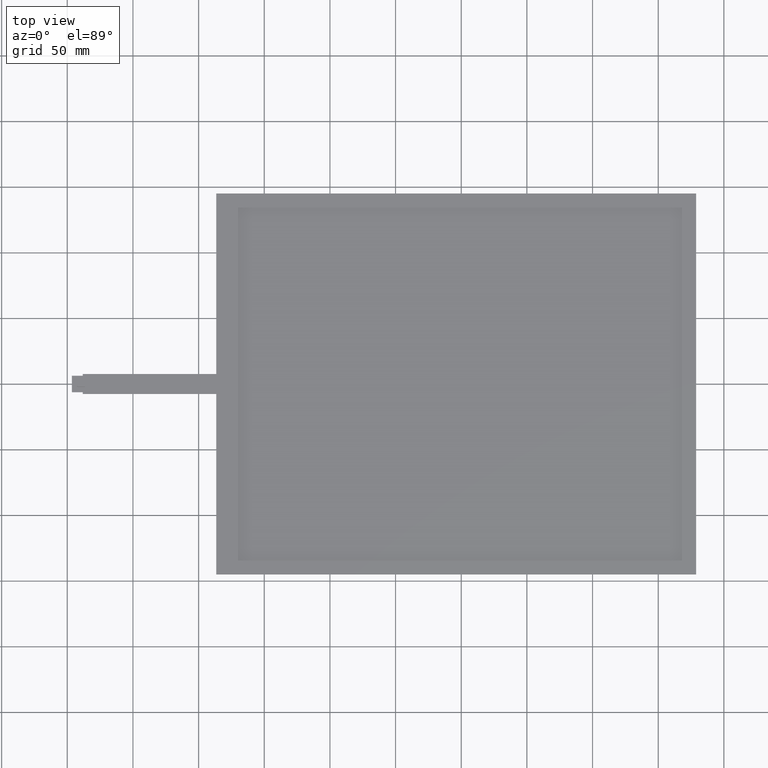
[diagram: clean part render]
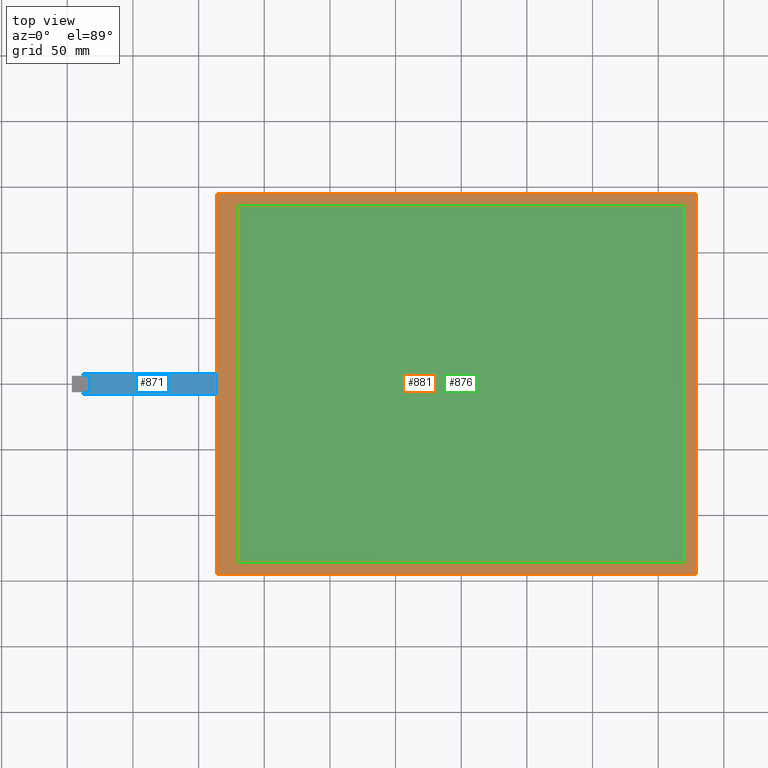
[diagram: same view with three faces highlighted in distinct colors, each labeled with its STEP entity id]
A machine part, top view with three faces highlighted in distinct colors.
Their STEP definitions:

[orange] entity #881 — the highlighted planar face has unit normal (0, 0, 1).
#61=FACE_BOUND('',#149,.T.);
#103=FACE_OUTER_BOUND('',#148,.T.);
#148=EDGE_LOOP('',(#785,#786,#787,#788));
#149=EDGE_LOOP('',(#789,#790,#791,#792));
#241=LINE('',#1334,#355);
#245=LINE('',#1342,#359);
#248=LINE('',#1348,#362);
#251=LINE('',#1353,#365);
#253=LINE('',#1359,#367);
#257=LINE('',#1367,#371);
#260=LINE('',#1373,#374);
#263=LINE('',#1378,#377);
#355=VECTOR('',#1104,10.);
#359=VECTOR('',#1110,10.);
#362=VECTOR('',#1115,10.);
#365=VECTOR('',#1120,10.);
#367=VECTOR('',#1126,10.);
#371=VECTOR('',#1132,10.);
#374=VECTOR('',#1137,10.);
#377=VECTOR('',#1142,10.);
#439=VERTEX_POINT('',#1332);
#440=VERTEX_POINT('',#1333);
#443=VERTEX_POINT('',#1341);
#445=VERTEX_POINT('',#1347);
#447=VERTEX_POINT('',#1357);
#448=VERTEX_POINT('',#1358);
#451=VERTEX_POINT('',#1366);
#453=VERTEX_POINT('',#1372);
#545=EDGE_CURVE('',#439,#440,#241,.T.);
#549=EDGE_CURVE('',#443,#439,#245,.T.);
#552=EDGE_CURVE('',#445,#443,#248,.T.);
#555=EDGE_CURVE('',#440,#445,#251,.T.);
#557=EDGE_CURVE('',#447,#448,#253,.T.);
#561=EDGE_CURVE('',#448,#451,#257,.T.);
#564=EDGE_CURVE('',#451,#453,#260,.T.);
#567=EDGE_CURVE('',#453,#447,#263,.T.);
#785=ORIENTED_EDGE('',*,*,#567,.T.);
#786=ORIENTED_EDGE('',*,*,#557,.T.);
#787=ORIENTED_EDGE('',*,*,#561,.T.);
#788=ORIENTED_EDGE('',*,*,#564,.T.);
#789=ORIENTED_EDGE('',*,*,#545,.T.);
#790=ORIENTED_EDGE('',*,*,#555,.T.);
#791=ORIENTED_EDGE('',*,*,#552,.T.);
#792=ORIENTED_EDGE('',*,*,#549,.T.);
#838=PLANE('',#944);
#881=ADVANCED_FACE('',(#103,#61),#838,.T.);
#944=AXIS2_PLACEMENT_3D('',#1380,#1144,#1145);
#1104=DIRECTION('',(0.,1.,0.));
#1110=DIRECTION('',(-1.,0.,0.));
#1115=DIRECTION('',(0.,-1.,0.));
#1120=DIRECTION('',(1.,0.,0.));
#1126=DIRECTION('',(1.,1.45842105041071E-16,0.));
#1132=DIRECTION('',(-1.22431376345734E-16,1.,0.));
#1137=DIRECTION('',(-1.,4.86140350136905E-17,0.));
#1142=DIRECTION('',(2.44862752691467E-16,-1.,0.));
#1144=DIRECTION('center_axis',(0.,0.,1.));
#1145=DIRECTION('ref_axis',(1.,0.,0.));
#1332=CARTESIAN_POINT('',(-170.,-136.2,0.));
#1333=CARTESIAN_POINT('',(-170.,136.2,0.));
#1334=CARTESIAN_POINT('',(-170.,-68.1,0.));
#1341=CARTESIAN_POINT('',(170.,-136.2,0.));
#1342=CARTESIAN_POINT('',(83.095,-136.2,0.));
#1347=CARTESIAN_POINT('',(170.,136.2,0.));
#1348=CARTESIAN_POINT('',(170.,68.1,0.));
#1353=CARTESIAN_POINT('',(-86.905,136.2,0.));
#1357=CARTESIAN_POINT('',(-186.51,-145.09,0.));
#1358=CARTESIAN_POINT('',(178.89,-145.09,0.));
#1359=CARTESIAN_POINT('',(-186.51,-145.09,0.));
#1366=CARTESIAN_POINT('',(178.89,145.09,0.));
#1367=CARTESIAN_POINT('',(178.89,-145.09,0.));
#1372=CARTESIAN_POINT('',(-186.51,145.09,0.));
#1373=CARTESIAN_POINT('',(178.89,145.09,0.));
#1378=CARTESIAN_POINT('',(-186.51,145.09,0.));
#1380=CARTESIAN_POINT('Origin',(-3.81,-7.105427357601E-14,0.));

[blue] entity #871 — the highlighted planar face has unit normal (0, 0, 1).
#93=FACE_OUTER_BOUND('',#137,.T.);
#137=EDGE_LOOP('',(#737,#738,#739,#740,#741,#742,#743,#744));
#209=LINE('',#1270,#323);
#213=LINE('',#1278,#327);
#221=LINE('',#1293,#335);
#232=LINE('',#1315,#346);
#235=LINE('',#1320,#349);
#236=LINE('',#1323,#350);
#238=LINE('',#1327,#352);
#240=LINE('',#1330,#354);
#323=VECTOR('',#1048,10.);
#327=VECTOR('',#1054,10.);
#335=VECTOR('',#1066,10.);
#346=VECTOR('',#1085,10.);
#349=VECTOR('',#1090,10.);
#350=VECTOR('',#1093,10.);
#352=VECTOR('',#1097,10.);
#354=VECTOR('',#1101,10.);
#419=VERTEX_POINT('',#1268);
#420=VERTEX_POINT('',#1269);
#423=VERTEX_POINT('',#1277);
#428=VERTEX_POINT('',#1292);
#435=VERTEX_POINT('',#1314);
#436=VERTEX_POINT('',#1318);
#437=VERTEX_POINT('',#1322);
#438=VERTEX_POINT('',#1326);
#513=EDGE_CURVE('',#419,#420,#209,.T.);
#517=EDGE_CURVE('',#423,#419,#213,.T.);
#525=EDGE_CURVE('',#420,#428,#221,.T.);
#536=EDGE_CURVE('',#435,#423,#232,.T.);
#539=EDGE_CURVE('',#428,#436,#235,.T.);
#540=EDGE_CURVE('',#437,#435,#236,.T.);
#542=EDGE_CURVE('',#436,#438,#238,.T.);
#544=EDGE_CURVE('',#437,#438,#240,.T.);
#737=ORIENTED_EDGE('',*,*,#525,.T.);
#738=ORIENTED_EDGE('',*,*,#539,.T.);
#739=ORIENTED_EDGE('',*,*,#542,.T.);
#740=ORIENTED_EDGE('',*,*,#544,.F.);
#741=ORIENTED_EDGE('',*,*,#540,.T.);
#742=ORIENTED_EDGE('',*,*,#536,.T.);
#743=ORIENTED_EDGE('',*,*,#517,.T.);
#744=ORIENTED_EDGE('',*,*,#513,.T.);
#828=PLANE('',#934);
#871=ADVANCED_FACE('',(#93),#828,.T.);
#934=AXIS2_PLACEMENT_3D('',#1329,#1099,#1100);
#1048=DIRECTION('',(0.,-1.,0.));
#1054=DIRECTION('',(1.,0.,0.));
#1066=DIRECTION('',(-1.,-1.6184009105323E-16,0.));
#1085=DIRECTION('',(0.,-1.,0.));
#1090=DIRECTION('',(0.,-1.,0.));
#1093=DIRECTION('',(-1.,0.,0.));
#1097=DIRECTION('',(1.,1.09112827972988E-16,0.));
#1099=DIRECTION('center_axis',(0.,0.,1.));
#1100=DIRECTION('ref_axis',(1.,0.,0.));
#1101=DIRECTION('',(2.44862752691467E-16,-1.,0.));
#1268=CARTESIAN_POINT('',(-282.8,6.27499999999992,-0.2));
#1269=CARTESIAN_POINT('',(-282.8,-6.27500000000009,-0.2));
#1270=CARTESIAN_POINT('',(-282.8,-3.13750000000008,-0.2));
#1277=CARTESIAN_POINT('',(-288.26,6.27499999999992,-0.2));
#1278=CARTESIAN_POINT('',(-260.0925,6.27499999999992,-0.2));
#1292=CARTESIAN_POINT('',(-288.26,-6.27500000000009,-0.2));
#1293=CARTESIAN_POINT('',(-266.9525,-6.27500000000008,-0.2));
#1314=CARTESIAN_POINT('',(-288.26,7.61999999999992,-0.2));
#1315=CARTESIAN_POINT('',(-288.26,7.61999999999992,-0.2));
#1318=CARTESIAN_POINT('',(-288.26,-7.62000000000009,-0.2));
#1320=CARTESIAN_POINT('',(-288.26,7.61999999999992,-0.2));
#1322=CARTESIAN_POINT('',(-186.51,7.61999999999992,-0.2));
#1323=CARTESIAN_POINT('',(-186.51,7.61999999999992,-0.2));
#1326=CARTESIAN_POINT('',(-186.51,-7.62000000000008,-0.2));
#1327=CARTESIAN_POINT('',(-288.26,-7.62000000000009,-0.2));
#1329=CARTESIAN_POINT('Origin',(-237.385,-8.10462807976364E-14,-0.2));
#1330=CARTESIAN_POINT('',(-186.51,-72.5450000000001,-0.2));

[green] entity #876 — the highlighted planar face has unit normal (0, 0, -1).
#98=FACE_OUTER_BOUND('',#142,.T.);
#142=EDGE_LOOP('',(#761,#762,#763,#764));
#243=LINE('',#1338,#357);
#247=LINE('',#1345,#361);
#250=LINE('',#1351,#364);
#252=LINE('',#1354,#366);
#357=VECTOR('',#1106,10.);
#361=VECTOR('',#1112,10.);
#364=VECTOR('',#1117,10.);
#366=VECTOR('',#1121,10.);
#441=VERTEX_POINT('',#1335);
#442=VERTEX_POINT('',#1337);
#444=VERTEX_POINT('',#1343);
#446=VERTEX_POINT('',#1349);
#547=EDGE_CURVE('',#441,#442,#243,.T.);
#551=EDGE_CURVE('',#444,#441,#247,.T.);
#554=EDGE_CURVE('',#446,#444,#250,.T.);
#556=EDGE_CURVE('',#442,#446,#252,.T.);
#761=ORIENTED_EDGE('',*,*,#556,.F.);
#762=ORIENTED_EDGE('',*,*,#547,.F.);
#763=ORIENTED_EDGE('',*,*,#551,.F.);
#764=ORIENTED_EDGE('',*,*,#554,.F.);
#833=PLANE('',#939);
#876=ADVANCED_FACE('',(#98),#833,.F.);
#939=AXIS2_PLACEMENT_3D('',#1355,#1122,#1123);
#1106=DIRECTION('',(0.,1.,0.));
#1112=DIRECTION('',(-1.,0.,0.));
#1117=DIRECTION('',(0.,-1.,0.));
#1121=DIRECTION('',(1.,0.,0.));
#1122=DIRECTION('center_axis',(0.,0.,-1.));
#1123=DIRECTION('ref_axis',(-1.,0.,0.));
#1335=CARTESIAN_POINT('',(-170.,-136.2,-0.1));
#1337=CARTESIAN_POINT('',(-170.,136.2,-0.1));
#1338=CARTESIAN_POINT('',(-170.,136.2,-0.1));
#1343=CARTESIAN_POINT('',(170.,-136.2,-0.1));
#1345=CARTESIAN_POINT('',(-170.,-136.2,-0.1));
#1349=CARTESIAN_POINT('',(170.,136.2,-0.1));
#1351=CARTESIAN_POINT('',(170.,-136.2,-0.1));
#1354=CARTESIAN_POINT('',(170.,136.2,-0.1));
#1355=CARTESIAN_POINT('Origin',(0.,0.,-0.1));